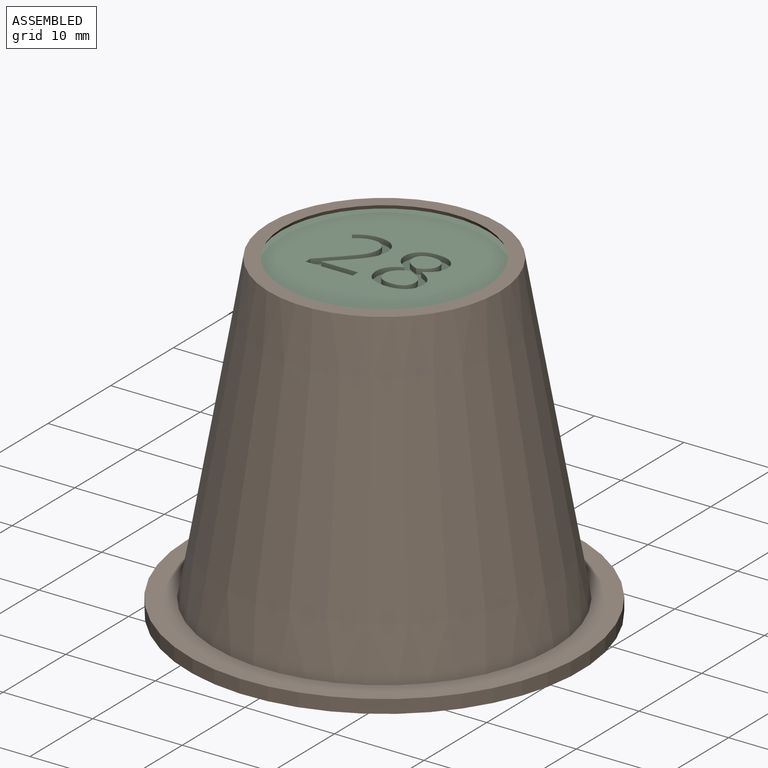
[diagram: assembled view]
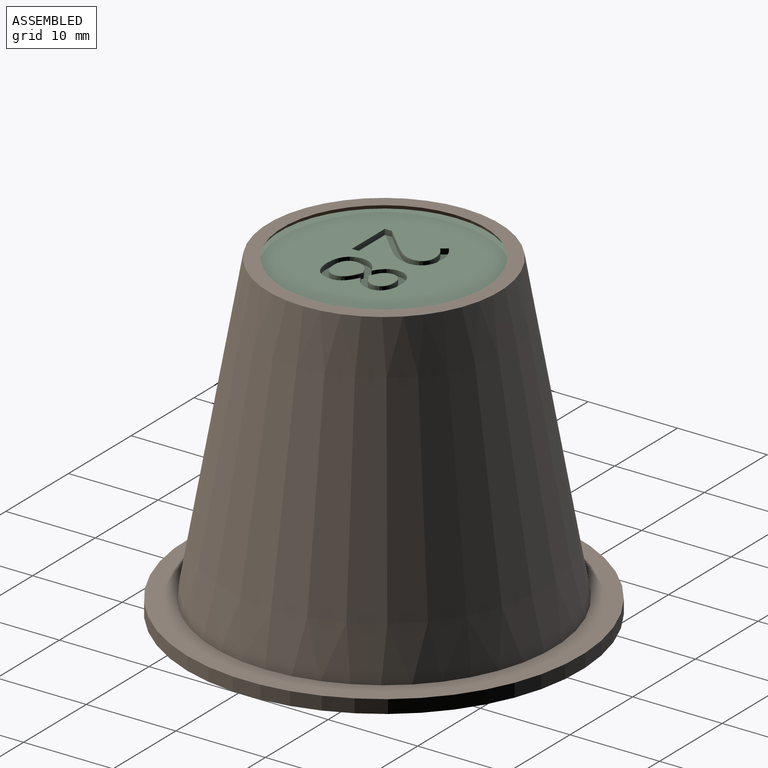
[diagram: assembled view, second angle]
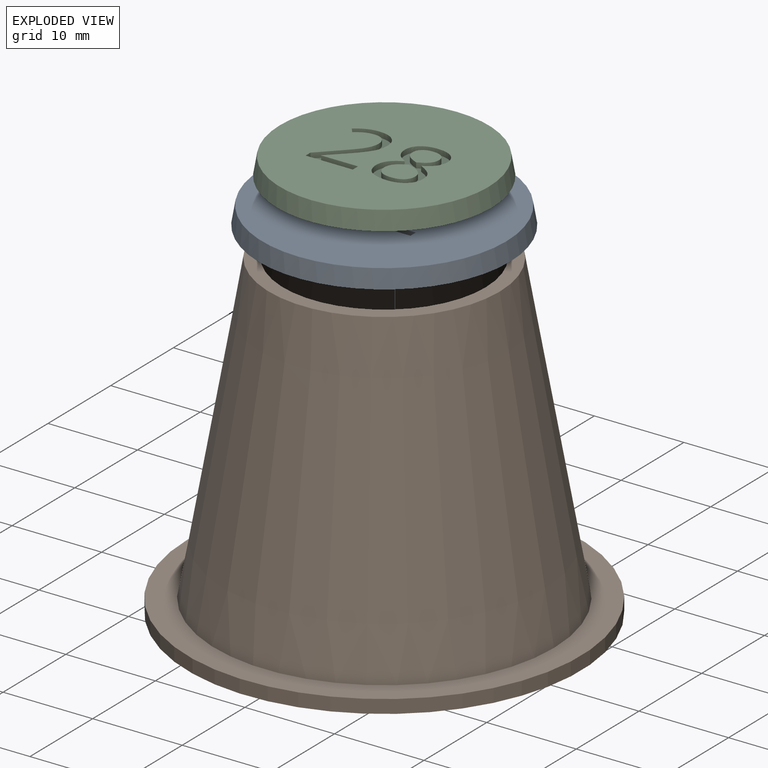
[diagram: exploded view]
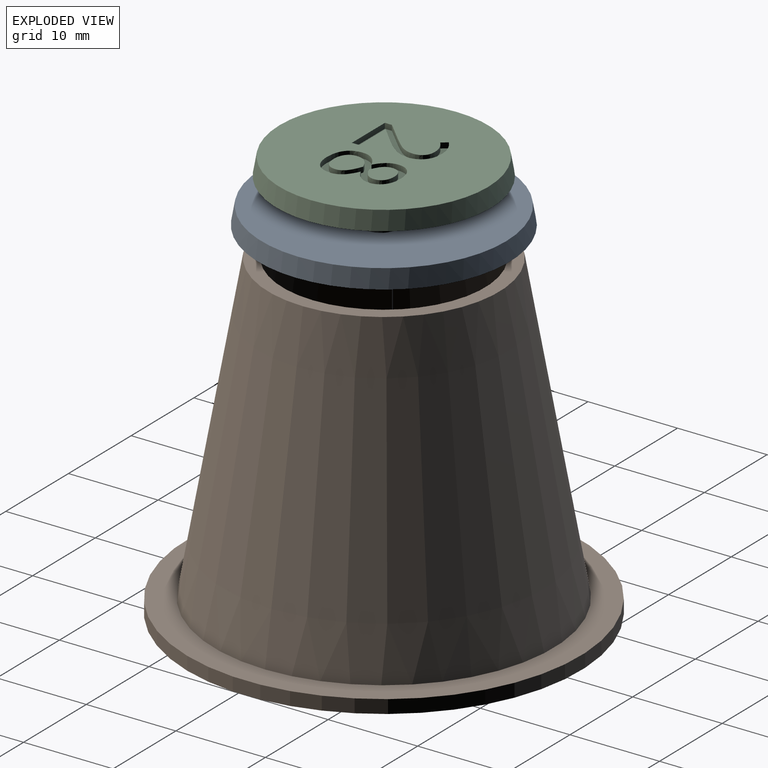
[diagram: exploded view, second angle]
ASSEMBLY  parts=3 mates=3
PART A: 45 faces, bbox 28x28x2 mm
  f0: plane 27.29x27.29mm, normal (0,0,1), area 556.7mm2, adj f1,f3,f4,f5,f6,f7,f8,f9
  f1: cone r=14mm half-angle=10deg, axis (0,0,-1), area 176.4mm2, adj f0,f2
  f2: plane 28x28mm, normal (0,0,-1), area 615.8mm2, adj f1
  f3: plane 0.85x0.6mm, normal (-1,0,0), area 0.5mm2, adj f0,f4,f22,f23
  f4: plane 4.13x0.6mm, normal (0,-1,0), area 2.5mm2, adj f0,f3,f5,f23
  f5: plane 0.6x0.04mm, normal (-1,0,0), area 0mm2, adj f0,f4,f6,f23
  f6: plane 1.76x1.72mm, normal (-0.7,0.71,0), area 1.5mm2, adj f0,f5,f7,f23
  f7: extruded ~1.89x1.6mm, area 1.5mm2, adj f0,f6,f8,f23
  f8: extruded ~1.51x0.6mm, area 1mm2, adj f0,f7,f9,f23
  f9: extruded ~1.56x0.64mm, area 1mm2, adj f0,f8,f10,f23
  f10: extruded ~1.78x0.6mm, area 1.1mm2, adj f0,f9,f11,f23
  f11: extruded ~2.42x0.92mm, area 1.6mm2, adj f0,f10,f12,f23
  f12: plane 0.62x0.6mm, normal (0.79,0.61,0), area 0.5mm2, adj f0,f11,f13,f23
  f13: extruded ~1x0.6mm, area 0.7mm2, adj f0,f12,f14,f23
  f14: extruded ~0.95x0.6mm, area 0.6mm2, adj f0,f13,f15,f23
  f15: extruded ~1.08x0.6mm, area 0.7mm2, adj f0,f14,f16,f23
  f16: extruded ~1.02x0.6mm, area 0.7mm2, adj f0,f15,f17,f23
  f17: extruded ~0.85x0.6mm, area 0.5mm2, adj f0,f16,f18,f23
  f18: extruded ~0.81x0.6mm, area 0.6mm2, adj f0,f17,f19,f23
  f19: extruded ~1.4x1.28mm, area 1.1mm2, adj f0,f18,f20,f23
  f20: plane 2.13x2.12mm, normal (0.71,-0.71,0), area 1.8mm2, adj f0,f19,f21,f23
  f21: plane 0.79x0.6mm, normal (1,0,0), area 0.5mm2, adj f0,f20,f22,f23
  f22: plane 5.28x0.6mm, normal (0,1,0), area 3.2mm2, adj f0,f3,f21,f23
  f23: plane 8.15x5.28mm, normal (0,0,1), area 14.2mm2, adj f3,f4,f5,f6,f7,f8,f9,f10
  f24: plane 0.85x0.6mm, normal (-1,0,0), area 0.5mm2, adj f0,f25,f43,f44
  f25: plane 4.13x0.6mm, normal (0,-1,0), area 2.5mm2, adj f0,f24,f26,f44
  f26: plane 0.6x0.04mm, normal (-1,0,0), area 0mm2, adj f0,f25,f27,f44
  f27: plane 1.76x1.72mm, normal (-0.7,0.71,0), area 1.5mm2, adj f0,f26,f28,f44
  f28: extruded ~1.89x1.6mm, area 1.5mm2, adj f0,f27,f29,f44
  f29: extruded ~1.51x0.6mm, area 1mm2, adj f0,f28,f30,f44
  f30: extruded ~1.56x0.64mm, area 1mm2, adj f0,f29,f31,f44
  f31: extruded ~1.78x0.6mm, area 1.1mm2, adj f0,f30,f32,f44
  f32: extruded ~2.42x0.92mm, area 1.6mm2, adj f0,f31,f33,f44
  f33: plane 0.62x0.6mm, normal (0.79,0.61,0), area 0.5mm2, adj f0,f32,f34,f44
  f34: extruded ~1x0.6mm, area 0.7mm2, adj f0,f33,f35,f44
  f35: extruded ~0.95x0.6mm, area 0.6mm2, adj f0,f34,f36,f44
  f36: extruded ~1.08x0.6mm, area 0.7mm2, adj f0,f35,f37,f44
  f37: extruded ~1.02x0.6mm, area 0.7mm2, adj f0,f36,f38,f44
  f38: extruded ~0.85x0.6mm, area 0.5mm2, adj f0,f37,f39,f44
  f39: extruded ~0.81x0.6mm, area 0.6mm2, adj f0,f38,f40,f44
  f40: extruded ~1.4x1.28mm, area 1.1mm2, adj f0,f39,f41,f44
  f41: plane 2.13x2.12mm, normal (0.71,-0.71,0), area 1.8mm2, adj f0,f40,f42,f44
  f42: plane 0.79x0.6mm, normal (1,0,0), area 0.5mm2, adj f0,f41,f43,f44
  f43: plane 5.28x0.6mm, normal (0,1,0), area 3.2mm2, adj f0,f24,f42,f44
  f44: plane 8.15x5.28mm, normal (0,0,1), area 14.2mm2, adj f24,f25,f26,f27,f28,f29,f30,f31
PART B: 7 faces, bbox 43.9x43.9x35.8 mm
  f0: plane 25.8x25.8mm, normal (0,0,1), area 120.5mm2, adj f1,f6
  f1: cone r=12.9mm half-angle=10deg, axis (0,0,-1), area 3489.3mm2, adj f0,f2
  f2: plane 43.91x43.91mm, normal (0,0,1), area 385.5mm2, adj f1,f3
  f3: cylinder r=21.95mm len=43.91mm, axis (0,0,-1), area 206.9mm2, adj f2,f4
  f4: plane 43.91x43.91mm, normal (0,0,-1), area 496.3mm2, adj f3,f5
  f5: cone r=11.83mm half-angle=10deg, axis (0,0,-1), area 3330.4mm2, adj f4,f6
  f6: cone r=11.83mm half-angle=31.4deg, axis (0,0,-1), area 71.6mm2, adj f0,f5
PART C: 58 faces, bbox 24x24x2 mm
  f0: plane 23.29x23.29mm, normal (0,0,1), area 378.2mm2, adj f1,f3,f4,f5,f6,f7,f8,f9
  f1: cone r=12mm half-angle=10deg, axis (0,0,-1), area 150.9mm2, adj f0,f2
  f2: plane 24x24mm, normal (0,0,-1), area 452.4mm2, adj f1
  f3: extruded ~1.73x0.6mm, area 1.1mm2, adj f0,f4,f33,f34
  f4: extruded ~1.39x0.64mm, area 1mm2, adj f0,f3,f5,f34
  f5: extruded ~1.11x0.6mm, area 0.7mm2, adj f0,f4,f6,f34
  f6: extruded ~1.09x0.92mm, area 0.9mm2, adj f0,f5,f7,f34
  f7: extruded ~2.15x1.68mm, area 1.7mm2, adj f0,f6,f8,f34
  f8: extruded ~1.6x0.69mm, area 1.1mm2, adj f0,f7,f9,f34
  f9: extruded ~1.98x0.6mm, area 1.3mm2, adj f0,f8,f10,f34
  f10: extruded ~1.91x0.6mm, area 1.2mm2, adj f0,f9,f11,f34
  f11: extruded ~1.59x0.7mm, area 1.1mm2, adj f0,f10,f12,f34
  f12: extruded ~1.19x0.6mm, area 0.8mm2, adj f0,f11,f13,f34
  f13: extruded ~1.39x0.98mm, area 1mm2, adj f0,f12,f14,f34
  f14: extruded ~1.18x0.89mm, area 0.9mm2, adj f0,f13,f15,f34
  f15: extruded ~1.08x0.6mm, area 0.7mm2, adj f0,f14,f16,f34
  f16: extruded ~1.41x0.64mm, area 1mm2, adj f0,f15,f33,f34
  f17: extruded ~1.02x0.6mm, area 0.7mm2, adj f18,f31,f34,f36
  f18: extruded ~1.19x0.78mm, area 0.9mm2, adj f17,f19,f34,f36
  f19: extruded ~1.49x0.8mm, area 1mm2, adj f18,f20,f34,f36
  f20: extruded ~0.95x0.6mm, area 0.6mm2, adj f19,f21,f34,f36
  f21: extruded ~1.05x0.6mm, area 0.7mm2, adj f20,f22,f34,f36
  f22: extruded ~1.27x0.6mm, area 0.8mm2, adj f21,f23,f34,f36
  f23: extruded ~1.29x0.6mm, area 0.8mm2, adj f22,f31,f34,f36
  f24: extruded ~1.1x0.6mm, area 0.7mm2, adj f25,f32,f34,f35
  f25: extruded ~0.88x0.6mm, area 0.6mm2, adj f24,f26,f34,f35
  f26: extruded ~0.88x0.6mm, area 0.6mm2, adj f25,f27,f34,f35
  f27: extruded ~1.11x0.71mm, area 0.8mm2, adj f26,f28,f34,f35
  f28: extruded ~1.2x0.72mm, area 0.8mm2, adj f27,f29,f34,f35
  f29: extruded ~0.87x0.6mm, area 0.6mm2, adj f28,f30,f34,f35
  f30: extruded ~0.88x0.6mm, area 0.6mm2, adj f29,f32,f34,f35
  f31: extruded ~1.03x0.6mm, area 0.7mm2, adj f17,f23,f34,f36
  f32: extruded ~1.08x0.6mm, area 0.7mm2, adj f24,f30,f34,f35
  f33: extruded ~1.74x0.6mm, area 1.1mm2, adj f0,f3,f16,f34
  f34: plane 8.25x5.27mm, normal (0,0,1), area 19.1mm2, adj f3,f4,f5,f6,f7,f8,f9,f10
  f35: plane 2.96x2.8mm, normal (0,0,1), area 6.3mm2, adj f24,f25,f26,f27,f28,f29,f30,f32
  f36: plane 3.47x3.19mm, normal (0,0,1), area 8.4mm2, adj f17,f18,f19,f20,f21,f22,f23,f31
  f37: plane 0.84x0.6mm, normal (-1,0,0), area 0.5mm2, adj f0,f38,f56,f57
  f38: plane 4.13x0.6mm, normal (0,-1,0), area 2.5mm2, adj f0,f37,f39,f57
  f39: plane 0.6x0.04mm, normal (-1,0,0), area 0mm2, adj f0,f38,f40,f57
  f40: plane 1.76x1.72mm, normal (-0.7,0.71,0), area 1.5mm2, adj f0,f39,f41,f57
  f41: extruded ~1.89x1.6mm, area 1.5mm2, adj f0,f40,f42,f57
  f42: extruded ~1.51x0.6mm, area 1mm2, adj f0,f41,f43,f57
  f43: extruded ~1.56x0.64mm, area 1mm2, adj f0,f42,f44,f57
  f44: extruded ~1.77x0.6mm, area 1.1mm2, adj f0,f43,f45,f57
  f45: extruded ~2.42x0.92mm, area 1.6mm2, adj f0,f44,f46,f57
  f46: plane 0.62x0.6mm, normal (0.79,0.61,0), area 0.5mm2, adj f0,f45,f47,f57
  f47: extruded ~1x0.6mm, area 0.7mm2, adj f0,f46,f48,f57
  f48: extruded ~0.95x0.6mm, area 0.6mm2, adj f0,f47,f49,f57
  f49: extruded ~1.08x0.6mm, area 0.7mm2, adj f0,f48,f50,f57
  f50: extruded ~1.02x0.6mm, area 0.7mm2, adj f0,f49,f51,f57
  f51: extruded ~0.85x0.6mm, area 0.5mm2, adj f0,f50,f52,f57
  f52: extruded ~0.81x0.6mm, area 0.6mm2, adj f0,f51,f53,f57
  f53: extruded ~1.4x1.27mm, area 1.1mm2, adj f0,f52,f54,f57
  f54: plane 2.12x2.11mm, normal (0.71,-0.71,0), area 1.8mm2, adj f0,f53,f55,f57
  f55: plane 0.79x0.6mm, normal (1,0,0), area 0.5mm2, adj f0,f54,f56,f57
  f56: plane 5.27x0.6mm, normal (0,1,0), area 3.2mm2, adj f0,f37,f55,f57
  f57: plane 8.14x5.27mm, normal (0,0,1), area 14.2mm2, adj f37,f38,f39,f40,f41,f42,f43,f44
PLACE A t=(0,3.3,-11.22)mm
PLACE B t=(0,52.22,-33.84)mm
PLACE C t=(38.4,3.3,-0.47)mm
MATE slider C.f1 <-> B.f1  axis (0,0,-1) through (0,52.22,0.53)mm
MATE cylindrical B.f1 <-> A.f1  axis (0,0,1) through (0,52.22,2)mm
MATE slider A.f1 <-> B.f1  axis (0,0,-1) through (0,52.22,-10.22)mm
